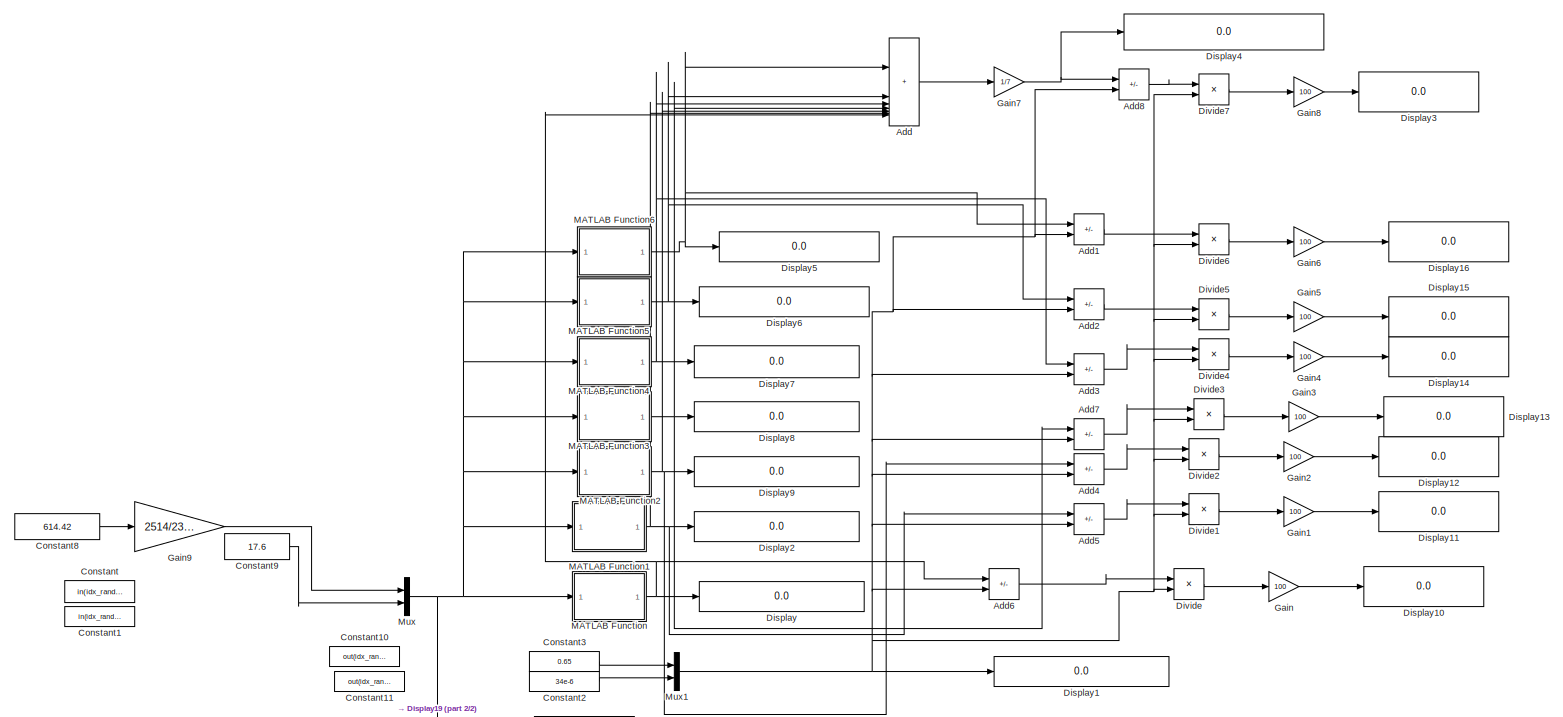
[diagram: root canvas - part 1/2, full width, middle band]
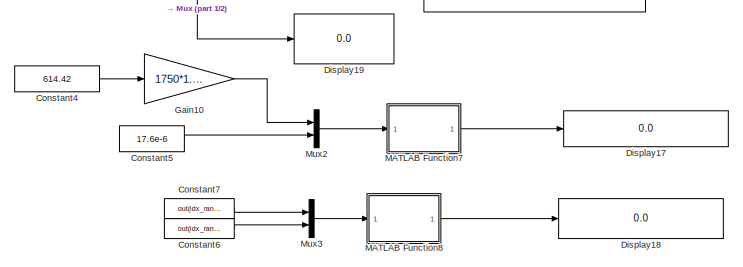
[diagram: root canvas - part 2/2, bottom center region]
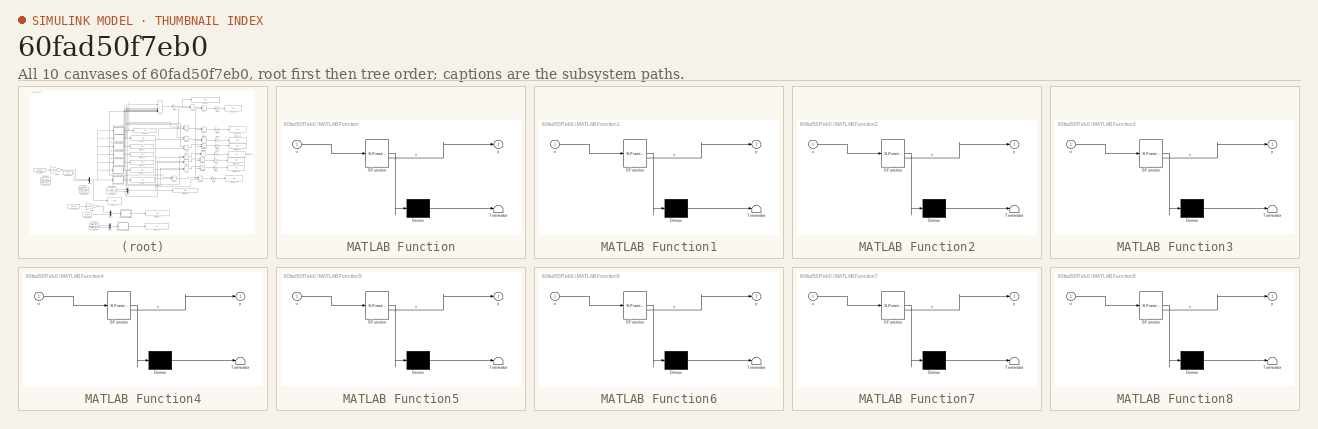
[diagram: thumbnail index - all 10 canvases of the model, root first then tree order]
MODEL slx_60fad50f7eb0
KIND model
CONFIG AbsTol = auto
CONFIG EnableMultiTasking = on
CONFIG FixedStep = 1e-7
CONFIG MaxStep = auto
CONFIG MinStep = auto
CONFIG RelTol = 1e-3
CONFIG SampleTimeConstraint = Unconstrained
CONFIG SolverName = FixedStepAuto
CONFIG StartTime = 0.0
CONFIG StopTime = 1e-5
BLOCK [Sum] Add
  IconShape = rectangular
  Inputs = 7
BLOCK [Sum] Add1
  IconShape = rectangular
  Inputs = +-
BLOCK [Sum] Add2
  IconShape = rectangular
  Inputs = +-
BLOCK [Sum] Add3
  IconShape = rectangular
  Inputs = +-
BLOCK [Sum] Add4
  IconShape = rectangular
  Inputs = +-
BLOCK [Sum] Add5
  IconShape = rectangular
  Inputs = +-
BLOCK [Sum] Add6
  IconShape = rectangular
  Inputs = +-
BLOCK [Sum] Add7
  IconShape = rectangular
  Inputs = +-
BLOCK [Sum] Add8
  IconShape = rectangular
  Inputs = +-
BLOCK [Constant] Constant
  Value = in(idx_rand,1)
BLOCK [Constant] Constant1
  Value = in(idx_rand,2)
BLOCK [Constant] Constant10
  Value = out(idx_rand,1)
BLOCK [Constant] Constant11
  Value = out(idx_rand,2)
BLOCK [Constant] Constant2
  Value = 34e-6
BLOCK [Constant] Constant3
  Value = 0.65
BLOCK [Constant] Constant4
  Value = 614.42
BLOCK [Constant] Constant5
  Value = 17.6e-6
BLOCK [Constant] Constant6
  Commented = on
  Value = out(idx_rand,2)
BLOCK [Constant] Constant7
  Commented = on
  Value = out(idx_rand,1)
BLOCK [Constant] Constant8
  Value = 614.42
BLOCK [Constant] Constant9
  Value = 17.6
BLOCK [Display] Display
  Decimation = 1
BLOCK [Display] Display1
  Decimation = 1
BLOCK [Display] Display10
  Decimation = 1
BLOCK [Display] Display11
  Decimation = 1
BLOCK [Display] Display12
  Decimation = 1
BLOCK [Display] Display13
  Decimation = 1
BLOCK [Display] Display14
  Decimation = 1
BLOCK [Display] Display15
  Decimation = 1
BLOCK [Display] Display16
  Decimation = 1
BLOCK [Display] Display17
  Decimation = 1
BLOCK [Display] Display18
  Commented = on
  Decimation = 1
BLOCK [Display] Display19
  Decimation = 1
BLOCK [Display] Display2
  Decimation = 1
BLOCK [Display] Display3
  Decimation = 1
BLOCK [Display] Display4
  Decimation = 1
BLOCK [Display] Display5
  Decimation = 1
BLOCK [Display] Display6
  Decimation = 1
BLOCK [Display] Display7
  Decimation = 1
BLOCK [Display] Display8
  Decimation = 1
BLOCK [Display] Display9
  Decimation = 1
BLOCK [Product] Divide
  Inputs = */
BLOCK [Product] Divide1
  Inputs = */
BLOCK [Product] Divide2
  Inputs = */
BLOCK [Product] Divide3
  Inputs = */
BLOCK [Product] Divide4
  Inputs = */
BLOCK [Product] Divide5
  Inputs = */
BLOCK [Product] Divide6
  Inputs = */
BLOCK [Product] Divide7
  Inputs = */
BLOCK [Gain] Gain
  Gain = 100
BLOCK [Gain] Gain1
  Gain = 100
BLOCK [Gain] Gain10
  Gain = 1750*1.414*1.016/2336
BLOCK [Gain] Gain2
  Gain = 100
BLOCK [Gain] Gain3
  Gain = 100
BLOCK [Gain] Gain4
  Gain = 100
BLOCK [Gain] Gain5
  Gain = 100
BLOCK [Gain] Gain6
  Gain = 100
BLOCK [Gain] Gain7
  Gain = 1/7
BLOCK [Gain] Gain8
  Gain = 100
BLOCK [Gain] Gain9
  Gain = 2514/2336
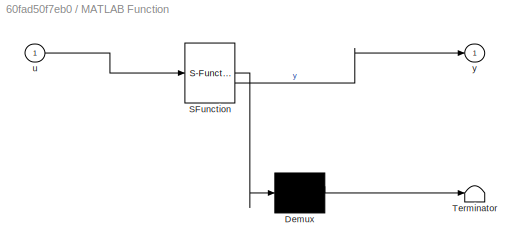
BLOCK [SubSystem] MATLAB Function
  ErrorFcn = Stateflow.Translate.translate
  PermitHierarchicalResolution = ExplicitOnly
  SFBlockType = MATLAB Function
  TreatAsAtomicUnit = on
BLOCK [Demux] MATLAB Function/ Demux 
  Outputs = 1
BLOCK [S-Function] MATLAB Function/ SFunction 
  EnableBusSupport = on
  FunctionName = sf_sfun
  PortCounts = [1 2]
  SFcnIsStateOwnerBlock = off
  SFunctionDeploymentMode = off
  Tag = Stateflow S-Function 2
BLOCK [Terminator] MATLAB Function/ Terminator 
BLOCK [Inport] MATLAB Function/u
BLOCK [Outport] MATLAB Function/y
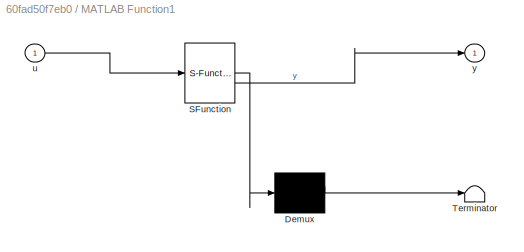
BLOCK [SubSystem] MATLAB Function1
  ErrorFcn = Stateflow.Translate.translate
  PermitHierarchicalResolution = ExplicitOnly
  SFBlockType = MATLAB Function
  TreatAsAtomicUnit = on
BLOCK [Demux] MATLAB Function1/ Demux 
  Outputs = 1
BLOCK [S-Function] MATLAB Function1/ SFunction 
  EnableBusSupport = on
  FunctionName = sf_sfun
  PortCounts = [1 2]
  SFcnIsStateOwnerBlock = off
  SFunctionDeploymentMode = off
  Tag = Stateflow S-Function 1
BLOCK [Terminator] MATLAB Function1/ Terminator 
BLOCK [Inport] MATLAB Function1/u
BLOCK [Outport] MATLAB Function1/y
BLOCK [SubSystem] MATLAB Function2
  ErrorFcn = Stateflow.Translate.translate
  PermitHierarchicalResolution = ExplicitOnly
  SFBlockType = MATLAB Function
  TreatAsAtomicUnit = on
BLOCK [Demux] MATLAB Function2/ Demux 
  Outputs = 1
BLOCK [S-Function] MATLAB Function2/ SFunction 
  EnableBusSupport = on
  FunctionName = sf_sfun
  PortCounts = [1 2]
  SFcnIsStateOwnerBlock = off
  SFunctionDeploymentMode = off
  Tag = Stateflow S-Function 3
BLOCK [Terminator] MATLAB Function2/ Terminator 
BLOCK [Inport] MATLAB Function2/u
BLOCK [Outport] MATLAB Function2/y
BLOCK [SubSystem] MATLAB Function3
  ErrorFcn = Stateflow.Translate.translate
  PermitHierarchicalResolution = ExplicitOnly
  SFBlockType = MATLAB Function
  TreatAsAtomicUnit = on
BLOCK [Demux] MATLAB Function3/ Demux 
  Outputs = 1
BLOCK [S-Function] MATLAB Function3/ SFunction 
  EnableBusSupport = on
  FunctionName = sf_sfun
  PortCounts = [1 2]
  SFcnIsStateOwnerBlock = off
  SFunctionDeploymentMode = off
  Tag = Stateflow S-Function 4
BLOCK [Terminator] MATLAB Function3/ Terminator 
BLOCK [Inport] MATLAB Function3/u
BLOCK [Outport] MATLAB Function3/y
BLOCK [SubSystem] MATLAB Function4
  ErrorFcn = Stateflow.Translate.translate
  PermitHierarchicalResolution = ExplicitOnly
  SFBlockType = MATLAB Function
  TreatAsAtomicUnit = on
BLOCK [Demux] MATLAB Function4/ Demux 
  Outputs = 1
BLOCK [S-Function] MATLAB Function4/ SFunction 
  EnableBusSupport = on
  FunctionName = sf_sfun
  PortCounts = [1 2]
  SFcnIsStateOwnerBlock = off
  SFunctionDeploymentMode = off
  Tag = Stateflow S-Function 5
BLOCK [Terminator] MATLAB Function4/ Terminator 
BLOCK [Inport] MATLAB Function4/u
BLOCK [Outport] MATLAB Function4/y
BLOCK [SubSystem] MATLAB Function5
  ErrorFcn = Stateflow.Translate.translate
  PermitHierarchicalResolution = ExplicitOnly
  SFBlockType = MATLAB Function
  TreatAsAtomicUnit = on
BLOCK [Demux] MATLAB Function5/ Demux 
  Outputs = 1
BLOCK [S-Function] MATLAB Function5/ SFunction 
  EnableBusSupport = on
  FunctionName = sf_sfun
  PortCounts = [1 2]
  SFcnIsStateOwnerBlock = off
  SFunctionDeploymentMode = off
  Tag = Stateflow S-Function 6
BLOCK [Terminator] MATLAB Function5/ Terminator 
BLOCK [Inport] MATLAB Function5/u
BLOCK [Outport] MATLAB Function5/y
BLOCK [SubSystem] MATLAB Function6
  ErrorFcn = Stateflow.Translate.translate
  PermitHierarchicalResolution = ExplicitOnly
  SFBlockType = MATLAB Function
  TreatAsAtomicUnit = on
BLOCK [Demux] MATLAB Function6/ Demux 
  Outputs = 1
BLOCK [S-Function] MATLAB Function6/ SFunction 
  EnableBusSupport = on
  FunctionName = sf_sfun
  PortCounts = [1 2]
  SFcnIsStateOwnerBlock = off
  SFunctionDeploymentMode = off
  Tag = Stateflow S-Function 7
BLOCK [Terminator] MATLAB Function6/ Terminator 
BLOCK [Inport] MATLAB Function6/u
BLOCK [Outport] MATLAB Function6/y
BLOCK [SubSystem] MATLAB Function7
  ErrorFcn = Stateflow.Translate.translate
  PermitHierarchicalResolution = ExplicitOnly
  SFBlockType = MATLAB Function
  TreatAsAtomicUnit = on
BLOCK [Demux] MATLAB Function7/ Demux 
  Outputs = 1
BLOCK [S-Function] MATLAB Function7/ SFunction 
  EnableBusSupport = on
  FunctionName = sf_sfun
  PortCounts = [1 2]
  SFcnIsStateOwnerBlock = off
  SFunctionDeploymentMode = off
  Tag = Stateflow S-Function 8
BLOCK [Terminator] MATLAB Function7/ Terminator 
BLOCK [Inport] MATLAB Function7/u
BLOCK [Outport] MATLAB Function7/y
BLOCK [SubSystem] MATLAB Function8
  Commented = on
  ErrorFcn = Stateflow.Translate.translate
  PermitHierarchicalResolution = ExplicitOnly
  SFBlockType = MATLAB Function
  TreatAsAtomicUnit = on
BLOCK [Demux] MATLAB Function8/ Demux 
  Outputs = 1
BLOCK [S-Function] MATLAB Function8/ SFunction 
  EnableBusSupport = on
  FunctionName = sf_sfun
  PortCounts = [1 2]
  SFcnIsStateOwnerBlock = off
  SFunctionDeploymentMode = off
  Tag = Stateflow S-Function 9
BLOCK [Terminator] MATLAB Function8/ Terminator 
BLOCK [Inport] MATLAB Function8/u
BLOCK [Outport] MATLAB Function8/y
BLOCK [Mux] Mux
  DisplayOption = bar
  Inputs = 2
BLOCK [Mux] Mux1
  DisplayOption = bar
  Inputs = 2
BLOCK [Mux] Mux2
  DisplayOption = bar
  Inputs = 2
BLOCK [Mux] Mux3
  Commented = on
  DisplayOption = bar
  Inputs = 2
LINE Add1:1 -> Divide6:1
LINE Add2:1 -> Divide5:1
LINE Add3:1 -> Divide4:1
LINE Add4:1 -> Divide2:1
LINE Add5:1 -> Divide1:1
LINE Add6:1 -> Divide:1
LINE Add7:1 -> Divide3:1
LINE Add8:1 -> Divide7:1
LINE Add:1 -> Gain7:1
LINE Constant2:1 -> Mux1:2
LINE Constant3:1 -> Mux1:1
LINE Constant4:1 -> Gain10:1
LINE Constant5:1 -> Mux2:2
LINE Constant6:1 -> Mux3:2
LINE Constant7:1 -> Mux3:1
LINE Constant8:1 -> Gain9:1
LINE Constant9:1 -> Mux:2
LINE Divide1:1 -> Gain1:1
LINE Divide2:1 -> Gain2:1
LINE Divide3:1 -> Gain3:1
LINE Divide4:1 -> Gain4:1
LINE Divide5:1 -> Gain5:1
LINE Divide6:1 -> Gain6:1
LINE Divide7:1 -> Gain8:1
LINE Divide:1 -> Gain:1
LINE Gain10:1 -> Mux2:1
LINE Gain1:1 -> Display11:1
LINE Gain2:1 -> Display12:1
LINE Gain3:1 -> Display13:1
LINE Gain4:1 -> Display14:1
LINE Gain5:1 -> Display15:1
LINE Gain6:1 -> Display16:1
NET Gain7:1 -> Add8:1, Display4:1
LINE Gain8:1 -> Display3:1
LINE Gain9:1 -> Mux:1
LINE Gain:1 -> Display10:1
NET MATLAB Function1:1 -> Add5:1, Add:6, Display2:1
NET MATLAB Function2:1 -> Add4:1, Add:5, Display9:1
NET MATLAB Function3:1 -> Add7:1, Add:4, Display8:1
NET MATLAB Function4:1 -> Add3:1, Add:3, Display7:1
NET MATLAB Function5:1 -> Add2:1, Add:2, Display6:1
NET MATLAB Function6:1 -> Add1:1, Add:1, Display5:1
LINE MATLAB Function7:1 -> Display17:1
LINE MATLAB Function8:1 -> Display18:1
NET MATLAB Function:1 -> Add6:1, Add:7, Display:1
NET Mux1:1 -> Add1:2, Add2:2, Add3:2, Add4:2, Add5:2, Add6:2, Add7:2, Add8:2, Display1:1, Divide1:2, Divide2:2, Divide3:2, Divide4:2, Divide5:2, Divide6:2, Divide7:2, Divide:2
LINE Mux2:1 -> MATLAB Function7:1
LINE Mux3:1 -> MATLAB Function8:1
NET Mux:1 -> Display19:1, MATLAB Function1:1, MATLAB Function2:1, MATLAB Function3:1, MATLAB Function4:1, MATLAB Function5:1, MATLAB Function6:1, MATLAB Function:1
note: NET lines group one-source signal fan-out (src -> all destinations, sorted); 1:1 wires keep LINE
CHART MATLAB Function states=1 transitions=1
  STATE_LABEL 'eML_blk_kernel()'
  STATE_LABEL 'SCRIPT:\nfunction y = fcn(u)\n\ny = predict16(u);\n'
CHART MATLAB Function2 states=1 transitions=1
  STATE_LABEL 'eML_blk_kernel()'
  STATE_LABEL 'SCRIPT:\nfunction y = fcn(u)\n\ny = predict2(u);\n'
CHART MATLAB Function3 states=1 transitions=1
  STATE_LABEL 'eML_blk_kernel()'
  STATE_LABEL 'SCRIPT:\nfunction y = fcn(u)\n\ny = predict3(u);\n'
CHART MATLAB Function4 states=1 transitions=1
  STATE_LABEL 'eML_blk_kernel()'
  STATE_LABEL 'SCRIPT:\nfunction y = fcn(u)\n\ny = predict4(u);\n'
CHART MATLAB Function5 states=1 transitions=1
  STATE_LABEL 'eML_blk_kernel()'
  STATE_LABEL 'SCRIPT:\nfunction y = fcn(u)\n\ny = predict5(u);\n'
CHART MATLAB Function6 states=1 transitions=1
  STATE_LABEL 'eML_blk_kernel()'
  STATE_LABEL 'SCRIPT:\nfunction y = fcn(u)\n\ny = predict6(u);\n'
CHART MATLAB Function7 states=1 transitions=1
  STATE_LABEL 'eML_blk_kernel()'
  STATE_LABEL 'SCRIPT:\nfunction y = fcn(u)\n\ny = predict16(u);\n'
CHART MATLAB Function8 states=1 transitions=1
  STATE_LABEL 'eML_blk_kernel()'
  STATE_LABEL 'SCRIPT:\nfunction y = fcn(u)\n\ny = predict1(u);\n'
CHART MATLAB Function1 states=1 transitions=1
  STATE_LABEL 'eML_blk_kernel()'
  STATE_LABEL 'SCRIPT:\nfunction y = fcn(u)\n\ny = predict1(u);\n'
CHART  states=0 transitions=0
CHART  states=0 transitions=0
CHART  states=0 transitions=0
CHART  states=0 transitions=0
CHART  states=0 transitions=0
CHART  states=0 transitions=0
CHART  states=0 transitions=0
CHART  states=0 transitions=0
CHART  states=0 transitions=0
